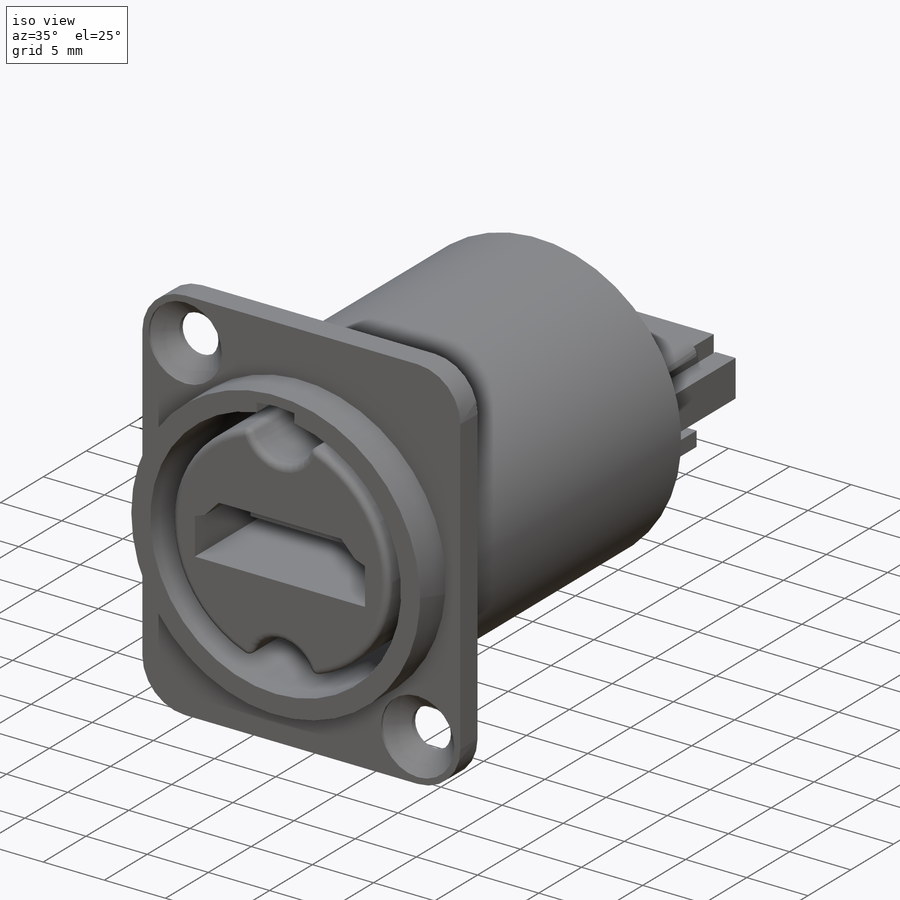
[diagram: iso view]
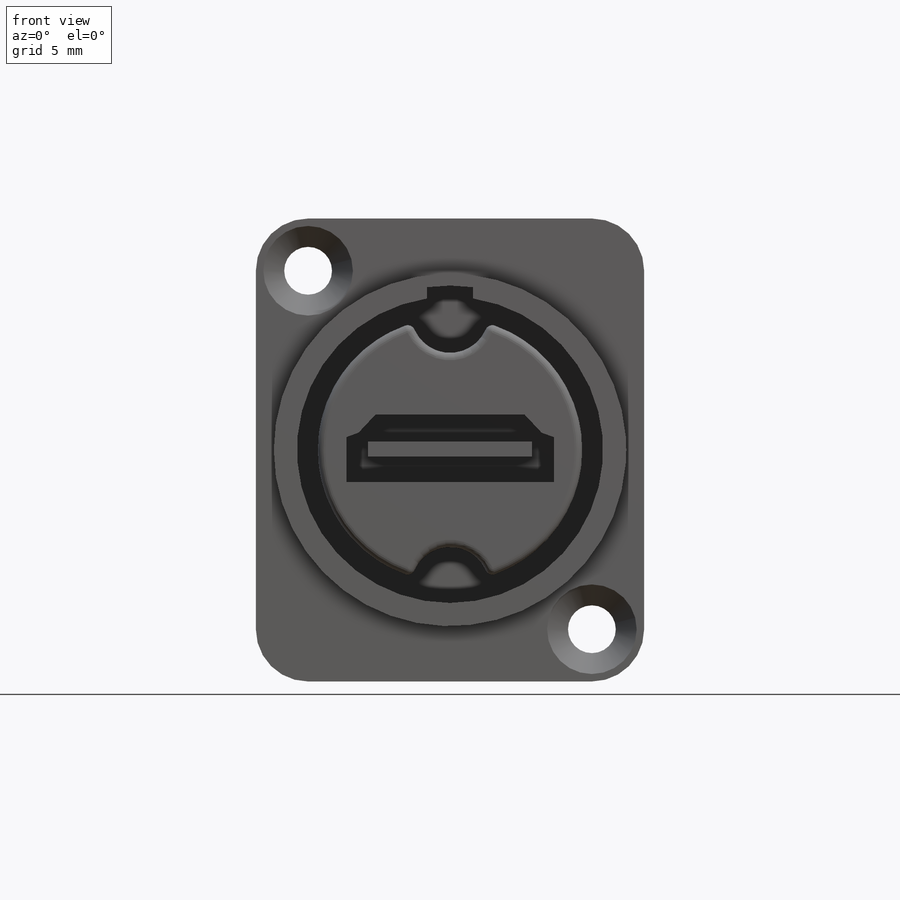
[diagram: front view]
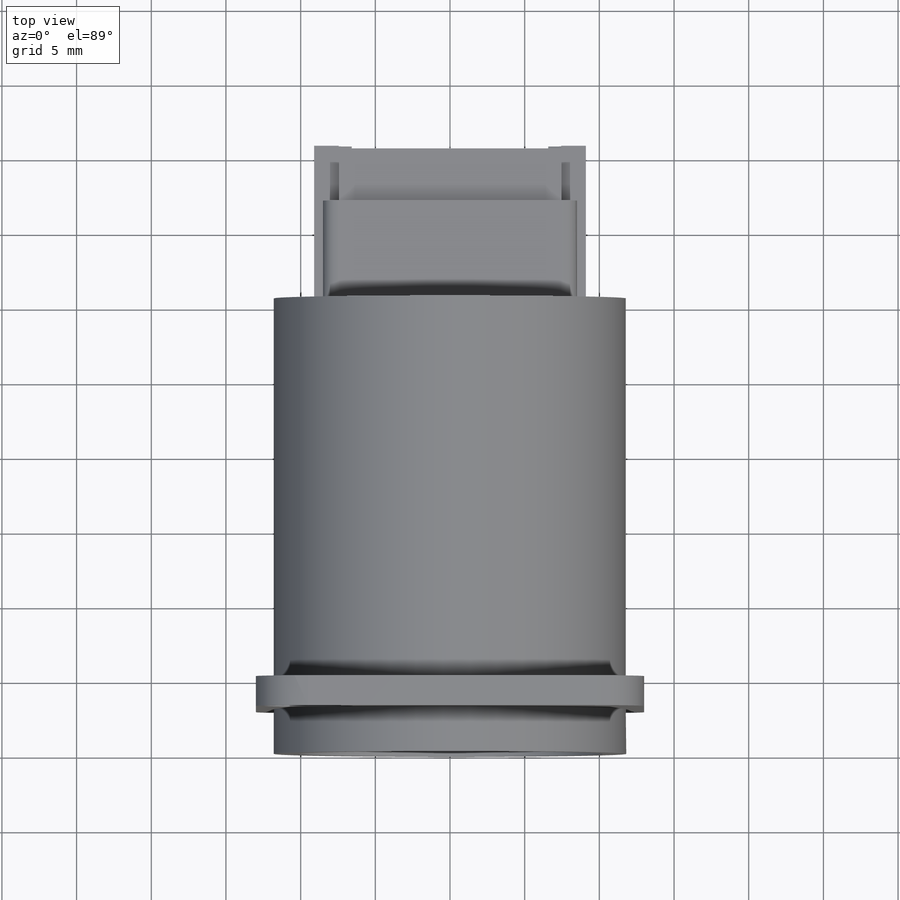
[diagram: top view]
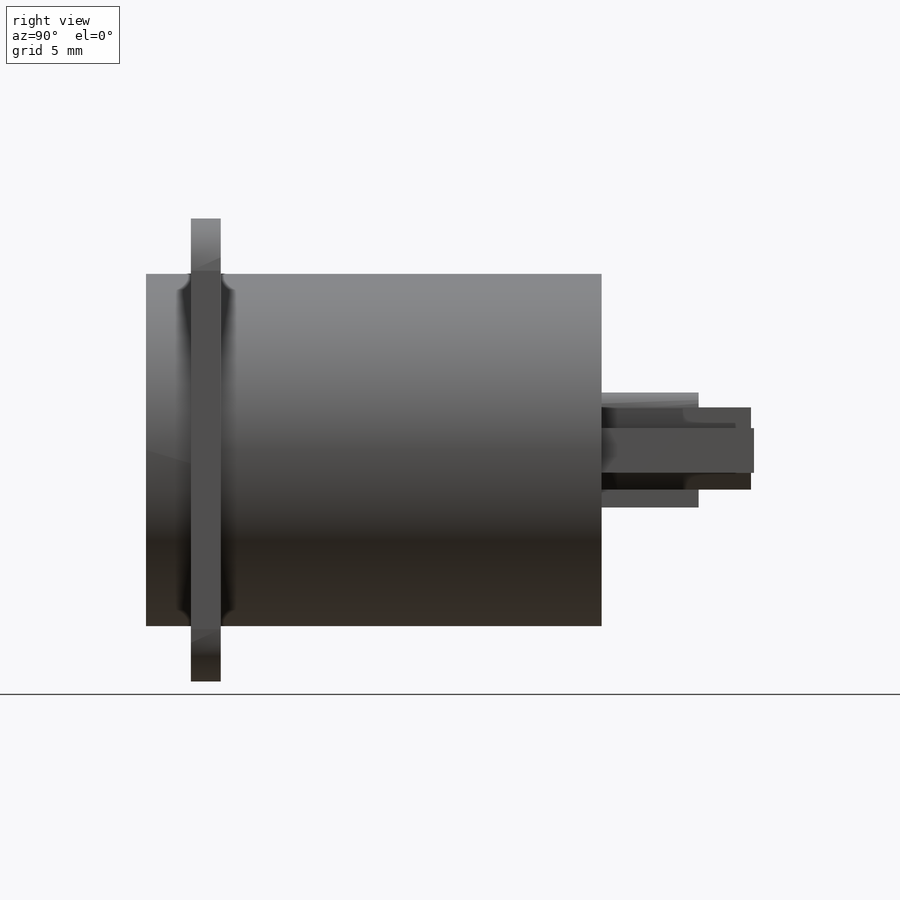
[diagram: right view]
SOLIDWORKS PART (.sldprt)
format: sldprt  version: not decoded by parser v0  size: 545,792 bytes
history: native  units: mm
features: sketch x21, extrude x10, plane x6, cut_extrude x6, fillet x3, hole x2, chamfer x2, material x1, revolve x1 (+8 scaffold rows collapsed)
feature tree (60):
  scaffold x8  (default folders/planes/origin — collapsed)
  material  "Matériau <non spécifié>"
  plane  "Plan de face"
  plane  "Plan de dessus"
  plane  "Plan de droite"
  plane  "Plan1"
  sketch  "Esquisse1"
  revolve  "Révolution1"  Angle=360deg
  plane  "Plan2"
  sketch  "Esquisse2"
  extrude  "Boss.-Extru.1"  Depth=2mm
  sketch  "Esquisse3"
  extrude  "Boss.-Extru.2"  Depth=1.2mm
  sketch  "Esquisse4"
  extrude  "Boss.-Extru.3"  Depth=10mm
  sketch  "Esquisse5"
  cut_extrude  "Enlèv. mat.-Extru.1"  Depth=3.6mm
  sketch  "Esquisse6"
  cut_extrude  "Enlèv. mat.-Extru.2"  Depth=1.65mm
  sketch  "Esquisse7"
  cut_extrude  "Enlèv. mat.-Extru.3"  Depth=1.65mm
  sketch  "Esquisse8"
  extrude  "Boss.-Extru.4"  Depth=0.2mm
  sketch  "Esquisse9"
  extrude  "Boss.-Extru.5"  Depth=0.2mm
  sketch  "Esquisse10"
  extrude  "Boss.-Extru.6"  Depth=3.7mm
  sketch  "Esquisse11"
  extrude  "Boss.-Extru.7"  Depth=3mm
  sketch  "Esquisse12"
  cut_extrude  "Enlèv. mat.-Extru.4"  Depth=14mm
  sketch  "Esquisse13"
  extrude  "Boss.-Extru.8"  Depth=13.5mm
  sketch  "Esquisse14"
  cut_extrude  "Enlèv. mat.-Extru.5"  Depth=11mm
  sketch  "Esquisse15"
  extrude  "Boss.-Extru.9"  Depth=6.6mm
  sketch  "Esquisse16"
  cut_extrude  "Enlèv. mat.-Extru.6"  Depth=12mm
  sketch  "Esquisse17"
  extrude  "Boss.-Extru.10"  Depth=9.6mm
  hole  "Fraisage pour vis à tête fraisée M31"  Diameter=3.2mm Depth=37.700025mm
  sketch  "Esquisse19"
  sketch  "Esquisse18"  dims[hole-wizard template sketch: 57 standard entries collapsed; hole parameters kept: c17.Diamètre du perçage jusqu'au prochain=3.2mm c17.Profondeur du perçage jusqu'au prochain=~37.700025mm c17.Diamètre du fraisage=6.0mm c17.D4=~19.358014mm c17.Angle du fraisage=~89.999845deg c17.Dégagement de la tête=~0.199992mm]
  plane  "Plan3"
  sketch  "Esquisse20"  dims[D1=17.0mm]
  sketch  "Esquisse21"
  hole  "Nervure2"  Diameter=17mm
  chamfer  "Chanfrein1"  Distance=0.027978mm Angle=20.013262deg
  chamfer  "Chanfrein2"  Distance=0.027978mm Angle=20.013262deg
  fillet  "Congé1"  Radius=0.5mm
  fillet  "Congé2"  Radius=1mm
  fillet  "Congé3"  Radius=3.5mm
decode coverage: 26 of 45 modeling features carry decoded parameters
note: ~ marks probable driven/reference dimensions
note: suppression state not decoded; provenance and decode notes live in map.json
